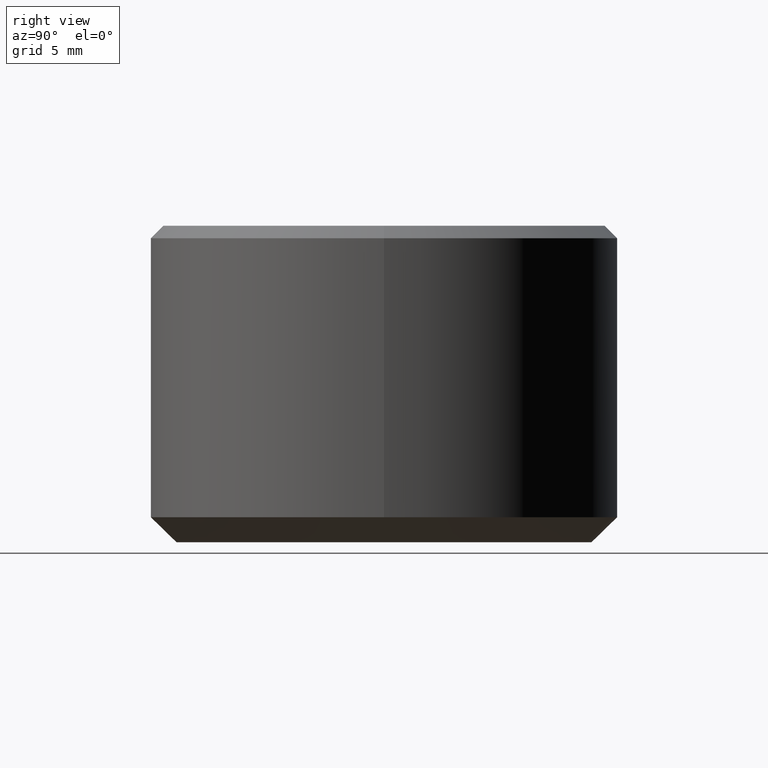
[diagram: clean part render]
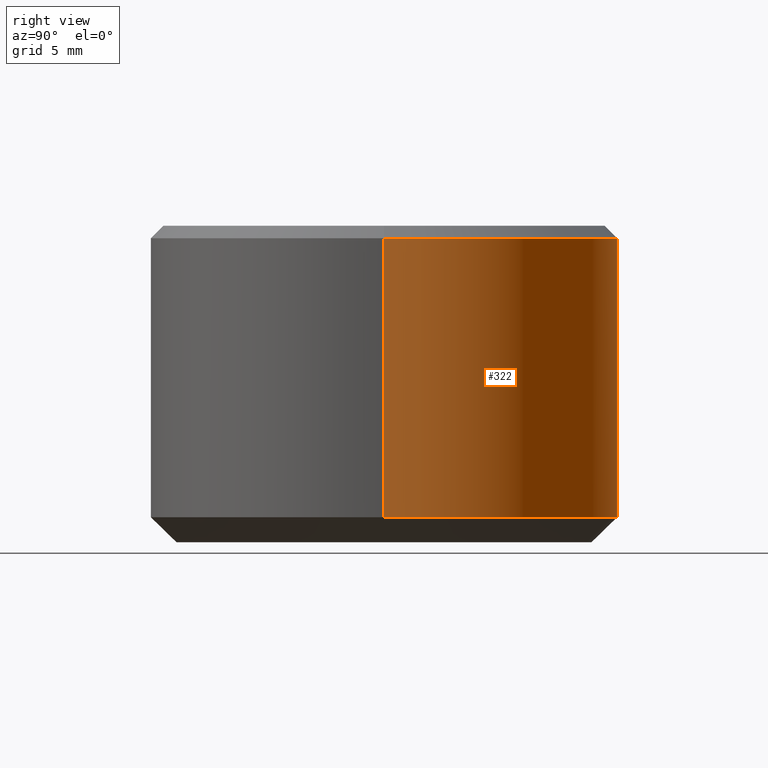
[diagram: same view with one face highlighted and labeled with its STEP entity id]
A machine part, right view. The second image highlights one B-rep face of the part: STEP entity #322.
In plain terms, the highlighted cylindrical surface (partial cylindrical patch) has radius 14 mm, axis along (-0, -0, 1).
Its self-contained STEP definition (entity closure, byte-faithful):
#3 = DIRECTION ( 'NONE',  ( -0.0000000000000000000, -0.0000000000000000000, 1.000000000000000000 ) ) ;
#31 = DIRECTION ( 'NONE',  ( 1.000000000000000000, 0.0000000000000000000, 0.0000000000000000000 ) ) ;
#33 = EDGE_LOOP ( 'NONE', ( #89, #96, #272, #253 ) ) ;
#41 = CARTESIAN_POINT ( 'NONE',  ( 14.00000000000012400, 0.0000000000000000000, 1.500000000000500700 ) ) ;
#42 = LINE ( 'NONE', #234, #292 ) ;
#49 = CYLINDRICAL_SURFACE ( 'NONE', #237, 14.00000000000012400 ) ;
#60 = EDGE_CURVE ( 'NONE', #169, #327, #42, .T. ) ;
#64 = DIRECTION ( 'NONE',  ( -0.0000000000000000000, -0.0000000000000000000, 1.000000000000000000 ) ) ;
#65 = CARTESIAN_POINT ( 'NONE',  ( -14.00000000000012400, 1.714505518806309600E-015, 18.25000000000032000 ) ) ;
#66 = CARTESIAN_POINT ( 'NONE',  ( 14.00000000000012400, 0.0000000000000000000, 18.25000000000032000 ) ) ;
#73 = CARTESIAN_POINT ( 'NONE',  ( 0.0000000000000000000, 0.0000000000000000000, 75.10608502361769500 ) ) ;
#89 = ORIENTED_EDGE ( 'NONE', *, *, #117, .T. ) ;
#96 = ORIENTED_EDGE ( 'NONE', *, *, #148, .T. ) ;
#100 = DIRECTION ( 'NONE',  ( -0.0000000000000000000, -0.0000000000000000000, 1.000000000000000000 ) ) ;
#104 = CARTESIAN_POINT ( 'NONE',  ( 0.0000000000000000000, 0.0000000000000000000, 1.500000000000500900 ) ) ;
#116 = CIRCLE ( 'NONE', #133, 14.00000000000012400 ) ;
#117 = EDGE_CURVE ( 'NONE', #169, #265, #194, .T. ) ;
#124 = DIRECTION ( 'NONE',  ( 1.000000000000000000, 0.0000000000000000000, 0.0000000000000000000 ) ) ;
#131 = DIRECTION ( 'NONE',  ( -0.0000000000000000000, -0.0000000000000000000, 1.000000000000000000 ) ) ;
#133 = AXIS2_PLACEMENT_3D ( 'NONE', #349, #290, #124 ) ;
#135 = CARTESIAN_POINT ( 'NONE',  ( -14.00000000000012400, 1.714505518806309600E-015, 75.10608502361769500 ) ) ;
#145 = VECTOR ( 'NONE', #64, 1000.000000000000000 ) ;
#148 = EDGE_CURVE ( 'NONE', #265, #203, #270, .T. ) ;
#166 = AXIS2_PLACEMENT_3D ( 'NONE', #104, #100, #31 ) ;
#169 = VERTEX_POINT ( 'NONE', #41 ) ;
#194 = CIRCLE ( 'NONE', #166, 14.00000000000012400 ) ;
#203 = VERTEX_POINT ( 'NONE', #65 ) ;
#234 = CARTESIAN_POINT ( 'NONE',  ( 14.00000000000012400, 0.0000000000000000000, 75.10608502361769500 ) ) ;
#237 = AXIS2_PLACEMENT_3D ( 'NONE', #73, #3, #263 ) ;
#253 = ORIENTED_EDGE ( 'NONE', *, *, #60, .F. ) ;
#263 = DIRECTION ( 'NONE',  ( 1.000000000000000000, 0.0000000000000000000, 0.0000000000000000000 ) ) ;
#265 = VERTEX_POINT ( 'NONE', #278 ) ;
#270 = LINE ( 'NONE', #135, #145 ) ;
#272 = ORIENTED_EDGE ( 'NONE', *, *, #286, .F. ) ;
#273 = FACE_OUTER_BOUND ( 'NONE', #33, .T. ) ;
#278 = CARTESIAN_POINT ( 'NONE',  ( -14.00000000000012400, 1.714505518806309600E-015, 1.500000000000500700 ) ) ;
#286 = EDGE_CURVE ( 'NONE', #327, #203, #116, .T. ) ;
#290 = DIRECTION ( 'NONE',  ( -0.0000000000000000000, -0.0000000000000000000, 1.000000000000000000 ) ) ;
#292 = VECTOR ( 'NONE', #131, 1000.000000000000000 ) ;
#322 = ADVANCED_FACE ( 'NONE', ( #273 ), #49, .T. ) ;
#327 = VERTEX_POINT ( 'NONE', #66 ) ;
#349 = CARTESIAN_POINT ( 'NONE',  ( 0.0000000000000000000, 0.0000000000000000000, 18.25000000000032000 ) ) ;